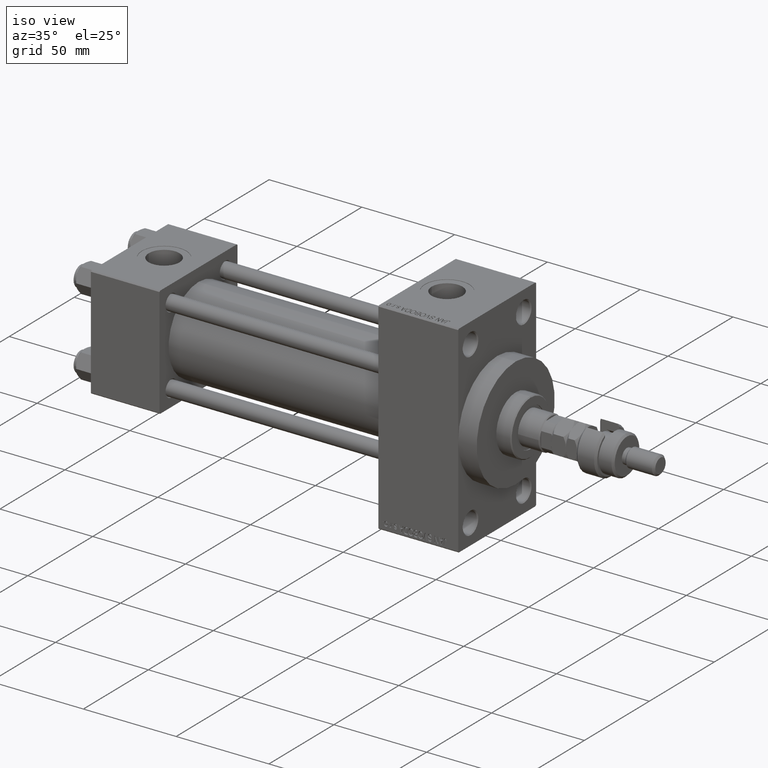
[diagram: clean part render]
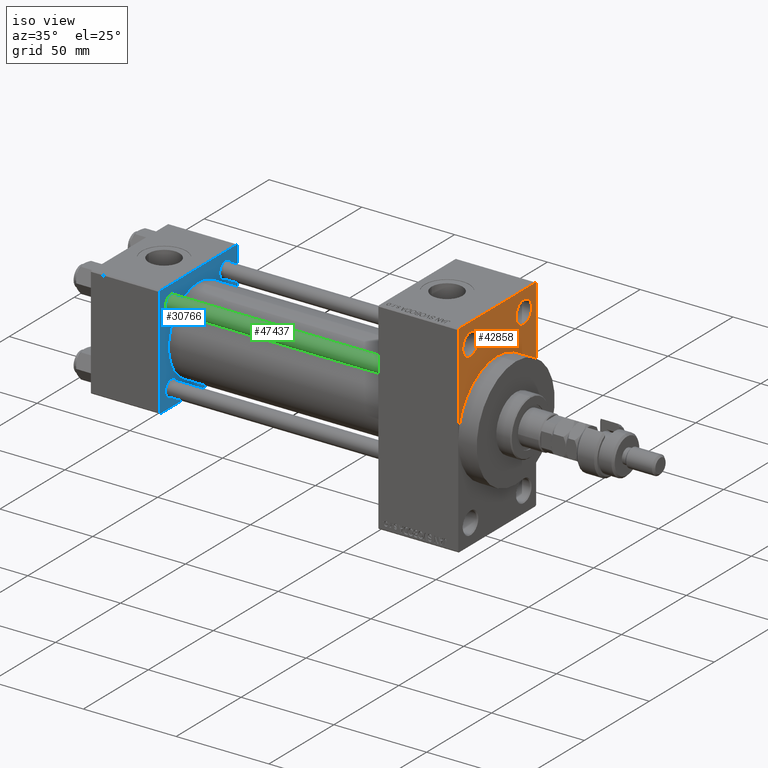
[diagram: same view with three faces highlighted in distinct colors, each labeled with its STEP entity id]
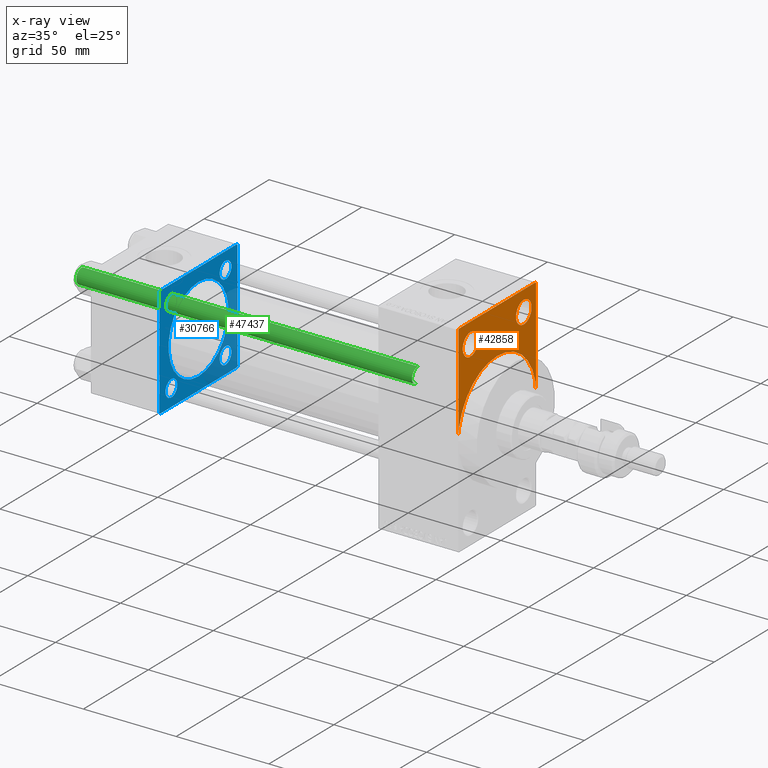
[diagram: x-ray of the same camera — body ghosted, the three highlighted faces saturated]
A machine part, iso view with three faces highlighted in distinct colors.
The next image is the same camera in x-ray (body ghosted, the three faces saturated) — at least one of them is partly hidden behind the body in this view.
Their STEP definitions:

[orange] entity #42858 — the highlighted planar face has unit normal (-1, 0, 0).
#1072 = AXIS2_PLACEMENT_3D ( 'NONE', #12002, #15787, #12250 ) ;
#1424 = CARTESIAN_POINT ( 'NONE',  ( 198.0000000000000000, 29.99999999999999645, 54.49999999999999289 ) ) ;
#1658 = FACE_OUTER_BOUND ( 'NONE', #45030, .T. ) ;
#2853 = ORIENTED_EDGE ( 'NONE', *, *, #37441, .T. ) ;
#3057 = EDGE_CURVE ( 'NONE', #17237, #40797, #6511, .T. ) ;
#5626 = CARTESIAN_POINT ( 'NONE',  ( 198.0000000000000000, -30.00000000000000000, 53.99999999999997158 ) ) ;
#5968 = DIRECTION ( 'NONE',  ( 0.000000000000000000, 0.000000000000000000, -1.000000000000000000 ) ) ;
#6167 = DIRECTION ( 'NONE',  ( 0.000000000000000000, -1.000000000000000000, 1.156482317317871478E-16 ) ) ;
#6372 = CARTESIAN_POINT ( 'NONE',  ( 198.0000000000000000, 29.49999999999999645, 54.49999999999999289 ) ) ;
#6511 = LINE ( 'NONE', #34095, #15672 ) ;
#6950 = CARTESIAN_POINT ( 'NONE',  ( 198.0000000000000000, 20.50000000000000000, 43.50000000000000000 ) ) ;
#7211 = DIRECTION ( 'NONE',  ( 0.000000000000000000, 0.000000000000000000, 1.000000000000000000 ) ) ;
#8376 = CARTESIAN_POINT ( 'NONE',  ( 198.0000000000000000, 30.00000000000000000, 0.000000000000000000 ) ) ;
#8513 = DIRECTION ( 'NONE',  ( -1.000000000000000000, 0.000000000000000000, -0.000000000000000000 ) ) ;
#8670 = CARTESIAN_POINT ( 'NONE',  ( 198.0000000000000000, -20.50000000000000000, 49.50000000000002842 ) ) ;
#8713 = CARTESIAN_POINT ( 'NONE',  ( 198.0000000000000000, -30.00000000000000000, 0.000000000000000000 ) ) ;
#8950 = CARTESIAN_POINT ( 'NONE',  ( 198.0000000000000000, -20.50000000000000000, 37.49999999999996447 ) ) ;
#10462 = ORIENTED_EDGE ( 'NONE', *, *, #28419, .T. ) ;
#12002 = CARTESIAN_POINT ( 'NONE',  ( 198.0000000000000000, 20.50000000000000000, 43.50000000000000000 ) ) ;
#12250 = DIRECTION ( 'NONE',  ( 0.000000000000000000, 0.000000000000000000, 1.000000000000000000 ) ) ;
#12605 = CIRCLE ( 'NONE', #48933, 30.00000000000000000 ) ;
#12651 = CARTESIAN_POINT ( 'NONE',  ( 198.0000000000000000, 0.000000000000000000, 0.000000000000000000 ) ) ;
#12822 = FACE_BOUND ( 'NONE', #24989, .T. ) ;
#12987 = ORIENTED_EDGE ( 'NONE', *, *, #27051, .F. ) ;
#13311 = PLANE ( 'NONE',  #42976 ) ;
#13784 = LINE ( 'NONE', #29201, #48077 ) ;
#13836 = ORIENTED_EDGE ( 'NONE', *, *, #19731, .F. ) ;
#13882 = DIRECTION ( 'NONE',  ( -1.000000000000000000, 0.000000000000000000, -0.000000000000000000 ) ) ;
#14464 = VERTEX_POINT ( 'NONE', #37453 ) ;
#14624 = DIRECTION ( 'NONE',  ( 0.000000000000000000, 0.000000000000000000, 1.000000000000000000 ) ) ;
#15351 = CARTESIAN_POINT ( 'NONE',  ( 198.0000000000000000, -29.49999999999997513, 54.50000000000000000 ) ) ;
#15536 = AXIS2_PLACEMENT_3D ( 'NONE', #29296, #13882, #14624 ) ;
#15672 = VECTOR ( 'NONE', #22440, 1000.000000000000114 ) ;
#15787 = DIRECTION ( 'NONE',  ( -1.000000000000000000, 0.000000000000000000, -0.000000000000000000 ) ) ;
#15983 = AXIS2_PLACEMENT_3D ( 'NONE', #42719, #27538, #31837 ) ;
#16032 = CIRCLE ( 'NONE', #15983, 6.000000000000032863 ) ;
#16333 = ORIENTED_EDGE ( 'NONE', *, *, #23307, .T. ) ;
#16342 = CARTESIAN_POINT ( 'NONE',  ( 198.0000000000000000, -30.00000000000000000, 54.50000000000000000 ) ) ;
#16443 = DIRECTION ( 'NONE',  ( 1.000000000000000000, 0.000000000000000000, 0.000000000000000000 ) ) ;
#17237 = VERTEX_POINT ( 'NONE', #19432 ) ;
#18036 = CIRCLE ( 'NONE', #1072, 6.000000000000032863 ) ;
#18299 = ORIENTED_EDGE ( 'NONE', *, *, #21166, .T. ) ;
#18587 = DIRECTION ( 'NONE',  ( 1.000000000000000000, 0.000000000000000000, 0.000000000000000000 ) ) ;
#19432 = CARTESIAN_POINT ( 'NONE',  ( 198.0000000000000000, 29.99999999999999645, 53.99999999999999289 ) ) ;
#19731 = EDGE_CURVE ( 'NONE', #48348, #24549, #34999, .T. ) ;
#20150 = CARTESIAN_POINT ( 'NONE',  ( 198.0000000000000000, 0.000000000000000000, 0.000000000000000000 ) ) ;
#21006 = VERTEX_POINT ( 'NONE', #15351 ) ;
#21166 = EDGE_CURVE ( 'NONE', #34034, #24549, #38611, .T. ) ;
#21402 = LINE ( 'NONE', #1424, #26232 ) ;
#22440 = DIRECTION ( 'NONE',  ( 0.000000000000000000, -0.7071067811865474617, 0.7071067811865474617 ) ) ;
#23307 = EDGE_CURVE ( 'NONE', #14464, #50040, #18036, .T. ) ;
#24365 = EDGE_CURVE ( 'NONE', #50040, #14464, #45506, .T. ) ;
#24549 = VERTEX_POINT ( 'NONE', #8713 ) ;
#24938 = DIRECTION ( 'NONE',  ( -0.000000000000000000, 0.000000000000000000, 1.000000000000000000 ) ) ;
#24989 = EDGE_LOOP ( 'NONE', ( #16333, #40251 ) ) ;
#25876 = DIRECTION ( 'NONE',  ( -0.000000000000000000, -0.7071067811865451302, -0.7071067811865500152 ) ) ;
#26052 = AXIS2_PLACEMENT_3D ( 'NONE', #49187, #18587, #46147 ) ;
#26232 = VECTOR ( 'NONE', #5968, 1000.000000000000000 ) ;
#26975 = AXIS2_PLACEMENT_3D ( 'NONE', #6950, #36402, #7211 ) ;
#27051 = EDGE_CURVE ( 'NONE', #17237, #42070, #21402, .T. ) ;
#27538 = DIRECTION ( 'NONE',  ( -1.000000000000000000, 0.000000000000000000, -0.000000000000000000 ) ) ;
#28419 = EDGE_CURVE ( 'NONE', #40797, #21006, #13784, .T. ) ;
#28737 = FACE_BOUND ( 'NONE', #42198, .T. ) ;
#29175 = ORIENTED_EDGE ( 'NONE', *, *, #47934, .T. ) ;
#29201 = CARTESIAN_POINT ( 'NONE',  ( 198.0000000000000000, 29.99999999999999645, 54.49999999999999289 ) ) ;
#29296 = CARTESIAN_POINT ( 'NONE',  ( 198.0000000000000000, -20.50000000000000000, 43.50000000000000000 ) ) ;
#29555 = EDGE_CURVE ( 'NONE', #42070, #48348, #12605, .T. ) ;
#30076 = VECTOR ( 'NONE', #39365, 1000.000000000000000 ) ;
#31837 = DIRECTION ( 'NONE',  ( 0.000000000000000000, 0.000000000000000000, 1.000000000000000000 ) ) ;
#31876 = DIRECTION ( 'NONE',  ( 0.000000000000000000, 0.000000000000000000, -1.000000000000000000 ) ) ;
#33221 = LINE ( 'NONE', #45094, #35535 ) ;
#34034 = VERTEX_POINT ( 'NONE', #5626 ) ;
#34095 = CARTESIAN_POINT ( 'NONE',  ( 198.0000000000000000, 29.49999999999999645, 54.49999999999999289 ) ) ;
#34999 = CIRCLE ( 'NONE', #26052, 30.00000000000000000 ) ;
#35535 = VECTOR ( 'NONE', #25876, 1000.000000000000114 ) ;
#35954 = VERTEX_POINT ( 'NONE', #8670 ) ;
#36341 = CARTESIAN_POINT ( 'NONE',  ( 198.0000000000000000, 0.000000000000000000, 30.00000000000000000 ) ) ;
#36402 = DIRECTION ( 'NONE',  ( -1.000000000000000000, 0.000000000000000000, -0.000000000000000000 ) ) ;
#36510 = ORIENTED_EDGE ( 'NONE', *, *, #3057, .T. ) ;
#37441 = EDGE_CURVE ( 'NONE', #35954, #46320, #16032, .T. ) ;
#37453 = CARTESIAN_POINT ( 'NONE',  ( 198.0000000000000000, 20.50000000000000000, 37.49999999999996447 ) ) ;
#38611 = LINE ( 'NONE', #16342, #30076 ) ;
#39365 = DIRECTION ( 'NONE',  ( 0.000000000000000000, 0.000000000000000000, -1.000000000000000000 ) ) ;
#39458 = ORIENTED_EDGE ( 'NONE', *, *, #43555, .T. ) ;
#39756 = CIRCLE ( 'NONE', #15536, 6.000000000000032863 ) ;
#40251 = ORIENTED_EDGE ( 'NONE', *, *, #24365, .T. ) ;
#40797 = VERTEX_POINT ( 'NONE', #6372 ) ;
#42070 = VERTEX_POINT ( 'NONE', #8376 ) ;
#42198 = EDGE_LOOP ( 'NONE', ( #39458, #2853 ) ) ;
#42719 = CARTESIAN_POINT ( 'NONE',  ( 198.0000000000000000, -20.50000000000000000, 43.50000000000000000 ) ) ;
#42858 = ADVANCED_FACE ( 'NONE', ( #28737, #12822, #1658 ), #13311, .F. ) ;
#42976 = AXIS2_PLACEMENT_3D ( 'NONE', #20150, #8513, #24938 ) ;
#43555 = EDGE_CURVE ( 'NONE', #46320, #35954, #39756, .T. ) ;
#45030 = EDGE_LOOP ( 'NONE', ( #10462, #29175, #18299, #13836, #48405, #12987, #36510 ) ) ;
#45094 = CARTESIAN_POINT ( 'NONE',  ( 198.0000000000000000, -30.00000000000000000, 53.99999999999997158 ) ) ;
#45506 = CIRCLE ( 'NONE', #26975, 6.000000000000032863 ) ;
#45541 = CARTESIAN_POINT ( 'NONE',  ( 198.0000000000000000, 20.50000000000000000, 49.50000000000002842 ) ) ;
#46147 = DIRECTION ( 'NONE',  ( 0.000000000000000000, 0.000000000000000000, -1.000000000000000000 ) ) ;
#46320 = VERTEX_POINT ( 'NONE', #8950 ) ;
#47934 = EDGE_CURVE ( 'NONE', #21006, #34034, #33221, .T. ) ;
#48077 = VECTOR ( 'NONE', #6167, 1000.000000000000000 ) ;
#48348 = VERTEX_POINT ( 'NONE', #36341 ) ;
#48405 = ORIENTED_EDGE ( 'NONE', *, *, #29555, .F. ) ;
#48933 = AXIS2_PLACEMENT_3D ( 'NONE', #12651, #16443, #31876 ) ;
#49187 = CARTESIAN_POINT ( 'NONE',  ( 198.0000000000000000, 0.000000000000000000, 0.000000000000000000 ) ) ;
#50040 = VERTEX_POINT ( 'NONE', #45541 ) ;

[blue] entity #30766 — the highlighted planar face has unit normal (-1, 0, 0).
#143 = CARTESIAN_POINT ( 'NONE',  ( 37.00000000000000000, 29.49999999999999289, 30.00000000000000000 ) ) ;
#154 = CIRCLE ( 'NONE', #1464, 4.500000000000003553 ) ;
#703 = LINE ( 'NONE', #20680, #26491 ) ;
#1197 = FACE_BOUND ( 'NONE', #3250, .T. ) ;
#1215 = CARTESIAN_POINT ( 'NONE',  ( 37.00000000000000000, -30.00000000000000000, 29.99999999999999289 ) ) ;
#1381 = CIRCLE ( 'NONE', #32917, 4.500000000000003553 ) ;
#1464 = AXIS2_PLACEMENT_3D ( 'NONE', #33101, #30046, #37636 ) ;
#1478 = EDGE_LOOP ( 'NONE', ( #17414, #23702, #37915, #6772, #34623, #5768, #39746, #36199 ) ) ;
#2059 = CARTESIAN_POINT ( 'NONE',  ( 37.00000000000000000, 20.84999999999999787, 16.34999999999999787 ) ) ;
#2660 = DIRECTION ( 'NONE',  ( 1.000000000000000000, -0.000000000000000000, 0.000000000000000000 ) ) ;
#2668 = CARTESIAN_POINT ( 'NONE',  ( 37.00000000000000000, -20.84999999999999076, 20.85000000000000497 ) ) ;
#2955 = CARTESIAN_POINT ( 'NONE',  ( 37.00000000000000000, 20.84999999999999787, -25.35000000000000497 ) ) ;
#3180 = VERTEX_POINT ( 'NONE', #41294 ) ;
#3250 = EDGE_LOOP ( 'NONE', ( #24816, #25206 ) ) ;
#3556 = CARTESIAN_POINT ( 'NONE',  ( 37.00000000000000000, 20.84999999999999787, 20.85000000000000142 ) ) ;
#4521 = EDGE_CURVE ( 'NONE', #13771, #33036, #48015, .T. ) ;
#4809 = ORIENTED_EDGE ( 'NONE', *, *, #13044, .T. ) ;
#4871 = AXIS2_PLACEMENT_3D ( 'NONE', #41428, #22199, #35098 ) ;
#5238 = FACE_BOUND ( 'NONE', #17978, .T. ) ;
#5768 = ORIENTED_EDGE ( 'NONE', *, *, #44045, .T. ) ;
#5825 = VECTOR ( 'NONE', #12551, 1000.000000000000114 ) ;
#5918 = CARTESIAN_POINT ( 'NONE',  ( 37.00000000000000711, 2.146024240737016609E-16, -23.00000000000000000 ) ) ;
#6086 = VERTEX_POINT ( 'NONE', #14963 ) ;
#6213 = DIRECTION ( 'NONE',  ( -1.000000000000000000, 0.000000000000000000, -0.000000000000000000 ) ) ;
#6217 = AXIS2_PLACEMENT_3D ( 'NONE', #8089, #11901, #47293 ) ;
#6772 = ORIENTED_EDGE ( 'NONE', *, *, #18765, .T. ) ;
#6951 = DIRECTION ( 'NONE',  ( 0.000000000000000000, 0.000000000000000000, 1.000000000000000000 ) ) ;
#6975 = CARTESIAN_POINT ( 'NONE',  ( 37.00000000000000000, 0.000000000000000000, 0.000000000000000000 ) ) ;
#6979 = AXIS2_PLACEMENT_3D ( 'NONE', #6975, #45433, #14838 ) ;
#7054 = CIRCLE ( 'NONE', #6217, 23.00000000000000000 ) ;
#7095 = VECTOR ( 'NONE', #38495, 1000.000000000000000 ) ;
#7237 = FACE_BOUND ( 'NONE', #43017, .T. ) ;
#7631 = CIRCLE ( 'NONE', #25406, 4.500000000000003553 ) ;
#7909 = CARTESIAN_POINT ( 'NONE',  ( 37.00000000000000000, 29.99999999999999289, -30.00000000000000000 ) ) ;
#8027 = CARTESIAN_POINT ( 'NONE',  ( 37.00000000000000000, -29.50000000000000000, -30.00000000000000711 ) ) ;
#8089 = CARTESIAN_POINT ( 'NONE',  ( 37.00000000000000711, -2.602085213965210642E-15, 0.000000000000000000 ) ) ;
#8354 = ORIENTED_EDGE ( 'NONE', *, *, #25789, .T. ) ;
#9556 = VECTOR ( 'NONE', #39328, 1000.000000000000000 ) ;
#10015 = VERTEX_POINT ( 'NONE', #38815 ) ;
#10249 = CARTESIAN_POINT ( 'NONE',  ( 37.00000000000000000, 20.84999999999999787, -20.85000000000000142 ) ) ;
#10715 = EDGE_CURVE ( 'NONE', #44959, #3180, #39588, .T. ) ;
#11277 = DIRECTION ( 'NONE',  ( -0.000000000000000000, -0.7071067811865474617, -0.7071067811865474617 ) ) ;
#11416 = CARTESIAN_POINT ( 'NONE',  ( 37.00000000000000000, -29.49999999999998579, 29.99999999999999289 ) ) ;
#11670 = DIRECTION ( 'NONE',  ( 0.000000000000000000, 0.000000000000000000, 1.000000000000000000 ) ) ;
#11679 = AXIS2_PLACEMENT_3D ( 'NONE', #25437, #2660, #6951 ) ;
#11835 = VERTEX_POINT ( 'NONE', #39601 ) ;
#11901 = DIRECTION ( 'NONE',  ( 1.000000000000000000, -0.000000000000000000, 0.000000000000000000 ) ) ;
#12551 = DIRECTION ( 'NONE',  ( 0.000000000000000000, -0.7071067811865474617, 0.7071067811865474617 ) ) ;
#12552 = EDGE_CURVE ( 'NONE', #11835, #27559, #39694, .T. ) ;
#12794 = CARTESIAN_POINT ( 'NONE',  ( 37.00000000000000000, -20.84999999999999076, 16.35000000000000142 ) ) ;
#12856 = DIRECTION ( 'NONE',  ( 0.000000000000000000, 0.000000000000000000, 1.000000000000000000 ) ) ;
#13044 = EDGE_CURVE ( 'NONE', #37810, #6086, #20743, .T. ) ;
#13771 = VERTEX_POINT ( 'NONE', #35901 ) ;
#14357 = EDGE_CURVE ( 'NONE', #30107, #10015, #1381, .T. ) ;
#14541 = EDGE_CURVE ( 'NONE', #27559, #17362, #39470, .T. ) ;
#14838 = DIRECTION ( 'NONE',  ( -0.000000000000000000, 0.000000000000000000, 1.000000000000000000 ) ) ;
#14960 = CARTESIAN_POINT ( 'NONE',  ( 37.00000000000000000, 20.84999999999999787, -20.85000000000000142 ) ) ;
#14963 = CARTESIAN_POINT ( 'NONE',  ( 37.00000000000000000, 20.84999999999999787, -16.34999999999999787 ) ) ;
#15897 = CARTESIAN_POINT ( 'NONE',  ( 37.00000000000000000, -20.84999999999999076, -20.85000000000000497 ) ) ;
#16065 = CARTESIAN_POINT ( 'NONE',  ( 37.00000000000000000, 29.99999999999999289, 30.00000000000000000 ) ) ;
#16109 = ORIENTED_EDGE ( 'NONE', *, *, #4521, .F. ) ;
#16779 = EDGE_CURVE ( 'NONE', #45109, #48957, #31491, .T. ) ;
#17347 = DIRECTION ( 'NONE',  ( -1.000000000000000000, 0.000000000000000000, -0.000000000000000000 ) ) ;
#17362 = VERTEX_POINT ( 'NONE', #8027 ) ;
#17414 = ORIENTED_EDGE ( 'NONE', *, *, #48753, .F. ) ;
#17789 = CARTESIAN_POINT ( 'NONE',  ( 37.00000000000000000, 29.49999999999997868, -30.00000000000000000 ) ) ;
#17978 = EDGE_LOOP ( 'NONE', ( #36232, #31101 ) ) ;
#18357 = DIRECTION ( 'NONE',  ( 0.000000000000000000, 0.000000000000000000, 1.000000000000000000 ) ) ;
#18765 = EDGE_CURVE ( 'NONE', #44959, #45109, #31774, .T. ) ;
#18991 = DIRECTION ( 'NONE',  ( 0.000000000000000000, 0.000000000000000000, 1.000000000000000000 ) ) ;
#19256 = ORIENTED_EDGE ( 'NONE', *, *, #43572, .T. ) ;
#20018 = CIRCLE ( 'NONE', #37793, 4.500000000000003553 ) ;
#20470 = CARTESIAN_POINT ( 'NONE',  ( 37.00000000000000000, -29.50000000000001066, -30.00000000000000711 ) ) ;
#20680 = CARTESIAN_POINT ( 'NONE',  ( 37.00000000000000000, 29.99999999999999289, -29.50000000000000000 ) ) ;
#20743 = CIRCLE ( 'NONE', #36882, 4.500000000000003553 ) ;
#22199 = DIRECTION ( 'NONE',  ( -1.000000000000000000, 0.000000000000000000, -0.000000000000000000 ) ) ;
#22412 = PLANE ( 'NONE',  #6979 ) ;
#23106 = CARTESIAN_POINT ( 'NONE',  ( 37.00000000000000000, 20.84999999999999787, 20.85000000000000142 ) ) ;
#23702 = ORIENTED_EDGE ( 'NONE', *, *, #37482, .T. ) ;
#23860 = DIRECTION ( 'NONE',  ( -1.000000000000000000, 0.000000000000000000, -0.000000000000000000 ) ) ;
#23886 = CARTESIAN_POINT ( 'NONE',  ( 37.00000000000000000, 29.99999999999999289, 30.00000000000000000 ) ) ;
#24097 = LINE ( 'NONE', #7909, #42836 ) ;
#24816 = ORIENTED_EDGE ( 'NONE', *, *, #49557, .T. ) ;
#25177 = DIRECTION ( 'NONE',  ( 0.000000000000000000, 0.000000000000000000, 1.000000000000000000 ) ) ;
#25206 = ORIENTED_EDGE ( 'NONE', *, *, #36496, .T. ) ;
#25406 = AXIS2_PLACEMENT_3D ( 'NONE', #14960, #27589, #11670 ) ;
#25437 = CARTESIAN_POINT ( 'NONE',  ( 37.00000000000000711, -2.602085213965210642E-15, 0.000000000000000000 ) ) ;
#25789 = EDGE_CURVE ( 'NONE', #6086, #37810, #7631, .T. ) ;
#26491 = VECTOR ( 'NONE', #32085, 999.9999999999998863 ) ;
#27167 = EDGE_CURVE ( 'NONE', #31073, #33715, #34328, .T. ) ;
#27559 = VERTEX_POINT ( 'NONE', #29192 ) ;
#27589 = DIRECTION ( 'NONE',  ( -1.000000000000000000, 0.000000000000000000, -0.000000000000000000 ) ) ;
#27955 = CARTESIAN_POINT ( 'NONE',  ( 37.00000000000000000, -20.84999999999999076, -16.35000000000000142 ) ) ;
#28049 = VECTOR ( 'NONE', #39331, 1000.000000000000000 ) ;
#29192 = CARTESIAN_POINT ( 'NONE',  ( 37.00000000000000000, -30.00000000000000000, -29.50000000000001776 ) ) ;
#29262 = FACE_BOUND ( 'NONE', #35436, .T. ) ;
#30046 = DIRECTION ( 'NONE',  ( -1.000000000000000000, 0.000000000000000000, -0.000000000000000000 ) ) ;
#30107 = VERTEX_POINT ( 'NONE', #2059 ) ;
#30246 = LINE ( 'NONE', #45924, #33755 ) ;
#30766 = ADVANCED_FACE ( 'NONE', ( #1197, #29262, #47508, #5238, #7237, #37858 ), #22412, .F. ) ;
#30879 = DIRECTION ( 'NONE',  ( 0.000000000000000000, 0.7071067811865474617, -0.7071067811865474617 ) ) ;
#31073 = VERTEX_POINT ( 'NONE', #48381 ) ;
#31101 = ORIENTED_EDGE ( 'NONE', *, *, #36990, .T. ) ;
#31115 = VERTEX_POINT ( 'NONE', #43400 ) ;
#31491 = LINE ( 'NONE', #23886, #9556 ) ;
#31691 = DIRECTION ( 'NONE',  ( 0.000000000000000000, -1.000000000000000000, -1.156482317317871725E-16 ) ) ;
#31774 = LINE ( 'NONE', #143, #5825 ) ;
#32085 = DIRECTION ( 'NONE',  ( -0.000000000000000000, 0.7071067811865574537, 0.7071067811865376918 ) ) ;
#32178 = EDGE_CURVE ( 'NONE', #33036, #13771, #7054, .T. ) ;
#32585 = CARTESIAN_POINT ( 'NONE',  ( 37.00000000000000000, 29.99999999999999289, 29.50000000000000000 ) ) ;
#32902 = VERTEX_POINT ( 'NONE', #27955 ) ;
#32917 = AXIS2_PLACEMENT_3D ( 'NONE', #3556, #34170, #18991 ) ;
#33036 = VERTEX_POINT ( 'NONE', #5918 ) ;
#33101 = CARTESIAN_POINT ( 'NONE',  ( 37.00000000000000000, -20.84999999999999076, 20.85000000000000497 ) ) ;
#33715 = VERTEX_POINT ( 'NONE', #12794 ) ;
#33755 = VECTOR ( 'NONE', #11277, 1000.000000000000114 ) ;
#34170 = DIRECTION ( 'NONE',  ( -1.000000000000000000, 0.000000000000000000, -0.000000000000000000 ) ) ;
#34328 = CIRCLE ( 'NONE', #44030, 4.500000000000003553 ) ;
#34549 = CIRCLE ( 'NONE', #49883, 4.500000000000003553 ) ;
#34623 = ORIENTED_EDGE ( 'NONE', *, *, #16779, .T. ) ;
#35098 = DIRECTION ( 'NONE',  ( 0.000000000000000000, 0.000000000000000000, 1.000000000000000000 ) ) ;
#35118 = DIRECTION ( 'NONE',  ( -1.000000000000000000, 0.000000000000000000, -0.000000000000000000 ) ) ;
#35436 = EDGE_LOOP ( 'NONE', ( #4809, #8354 ) ) ;
#35901 = CARTESIAN_POINT ( 'NONE',  ( 37.00000000000000711, -2.602085213965210642E-15, 23.00000000000000000 ) ) ;
#35965 = ORIENTED_EDGE ( 'NONE', *, *, #27167, .T. ) ;
#36199 = ORIENTED_EDGE ( 'NONE', *, *, #14541, .T. ) ;
#36232 = ORIENTED_EDGE ( 'NONE', *, *, #14357, .T. ) ;
#36496 = EDGE_CURVE ( 'NONE', #32902, #31115, #34549, .T. ) ;
#36641 = EDGE_LOOP ( 'NONE', ( #19256, #35965 ) ) ;
#36882 = AXIS2_PLACEMENT_3D ( 'NONE', #10249, #17347, #25177 ) ;
#36990 = EDGE_CURVE ( 'NONE', #10015, #30107, #20018, .T. ) ;
#37482 = EDGE_CURVE ( 'NONE', #38292, #3180, #703, .T. ) ;
#37618 = CARTESIAN_POINT ( 'NONE',  ( 37.00000000000000000, 29.49999999999999289, 30.00000000000000000 ) ) ;
#37636 = DIRECTION ( 'NONE',  ( 0.000000000000000000, 0.000000000000000000, 1.000000000000000000 ) ) ;
#37793 = AXIS2_PLACEMENT_3D ( 'NONE', #23106, #23860, #39559 ) ;
#37810 = VERTEX_POINT ( 'NONE', #2955 ) ;
#37858 = FACE_OUTER_BOUND ( 'NONE', #1478, .T. ) ;
#37915 = ORIENTED_EDGE ( 'NONE', *, *, #10715, .F. ) ;
#38292 = VERTEX_POINT ( 'NONE', #17789 ) ;
#38495 = DIRECTION ( 'NONE',  ( 0.000000000000000000, 0.000000000000000000, -1.000000000000000000 ) ) ;
#38815 = CARTESIAN_POINT ( 'NONE',  ( 37.00000000000000000, 20.84999999999999787, 25.35000000000000497 ) ) ;
#39328 = DIRECTION ( 'NONE',  ( 0.000000000000000000, -1.000000000000000000, -1.156482317317871725E-16 ) ) ;
#39331 = DIRECTION ( 'NONE',  ( 0.000000000000000000, 0.000000000000000000, -1.000000000000000000 ) ) ;
#39470 = LINE ( 'NONE', #20470, #40968 ) ;
#39559 = DIRECTION ( 'NONE',  ( 0.000000000000000000, 0.000000000000000000, 1.000000000000000000 ) ) ;
#39588 = LINE ( 'NONE', #16065, #28049 ) ;
#39601 = CARTESIAN_POINT ( 'NONE',  ( 37.00000000000000000, -30.00000000000000000, 29.49999999999999289 ) ) ;
#39694 = LINE ( 'NONE', #1215, #7095 ) ;
#39746 = ORIENTED_EDGE ( 'NONE', *, *, #12552, .T. ) ;
#40968 = VECTOR ( 'NONE', #30879, 1000.000000000000114 ) ;
#41294 = CARTESIAN_POINT ( 'NONE',  ( 37.00000000000000000, 29.99999999999999289, -29.50000000000000000 ) ) ;
#41428 = CARTESIAN_POINT ( 'NONE',  ( 37.00000000000000000, -20.84999999999999076, -20.85000000000000497 ) ) ;
#42836 = VECTOR ( 'NONE', #31691, 1000.000000000000000 ) ;
#42859 = CIRCLE ( 'NONE', #4871, 4.500000000000003553 ) ;
#43017 = EDGE_LOOP ( 'NONE', ( #16109, #48176 ) ) ;
#43400 = CARTESIAN_POINT ( 'NONE',  ( 37.00000000000000000, -20.84999999999999076, -25.35000000000000853 ) ) ;
#43572 = EDGE_CURVE ( 'NONE', #33715, #31073, #154, .T. ) ;
#44030 = AXIS2_PLACEMENT_3D ( 'NONE', #2668, #6213, #18357 ) ;
#44045 = EDGE_CURVE ( 'NONE', #48957, #11835, #30246, .T. ) ;
#44959 = VERTEX_POINT ( 'NONE', #32585 ) ;
#45109 = VERTEX_POINT ( 'NONE', #37618 ) ;
#45433 = DIRECTION ( 'NONE',  ( -1.000000000000000000, 0.000000000000000000, -0.000000000000000000 ) ) ;
#45924 = CARTESIAN_POINT ( 'NONE',  ( 37.00000000000000000, -30.00000000000000000, 29.49999999999999289 ) ) ;
#47293 = DIRECTION ( 'NONE',  ( 0.000000000000000000, 0.000000000000000000, 1.000000000000000000 ) ) ;
#47508 = FACE_BOUND ( 'NONE', #36641, .T. ) ;
#48015 = CIRCLE ( 'NONE', #11679, 23.00000000000000000 ) ;
#48176 = ORIENTED_EDGE ( 'NONE', *, *, #32178, .F. ) ;
#48381 = CARTESIAN_POINT ( 'NONE',  ( 37.00000000000000000, -20.84999999999999076, 25.35000000000000853 ) ) ;
#48753 = EDGE_CURVE ( 'NONE', #38292, #17362, #24097, .T. ) ;
#48957 = VERTEX_POINT ( 'NONE', #11416 ) ;
#49557 = EDGE_CURVE ( 'NONE', #31115, #32902, #42859, .T. ) ;
#49883 = AXIS2_PLACEMENT_3D ( 'NONE', #15897, #35118, #12856 ) ;

[green] entity #47437 — the highlighted cylindrical surface (edge-blend (fillet) strip) has radius 4 mm, axis along (1, 0, 0).
#720 = LINE ( 'NONE', #12626, #29706 ) ;
#918 = VERTEX_POINT ( 'NONE', #29389 ) ;
#1912 = CARTESIAN_POINT ( 'NONE',  ( 0.000000000000000000, 0.000000000000000000, 182.0000000000000000 ) ) ;
#6198 = DIRECTION ( 'NONE',  ( -0.000000000000000000, -0.000000000000000000, -1.000000000000000000 ) ) ;
#6410 = AXIS2_PLACEMENT_3D ( 'NONE', #1912, #6198, #32787 ) ;
#7648 = DIRECTION ( 'NONE',  ( 1.000000000000000000, 0.000000000000000000, 0.000000000000000000 ) ) ;
#11482 = VERTEX_POINT ( 'NONE', #12839 ) ;
#12342 = CARTESIAN_POINT ( 'NONE',  ( -4.000000000000000000, 0.000000000000000000, 182.0000000000000000 ) ) ;
#12505 = EDGE_CURVE ( 'NONE', #918, #41631, #720, .T. ) ;
#12626 = CARTESIAN_POINT ( 'NONE',  ( 4.000000000000000000, 4.898587196589412829E-16, 182.0000000000000000 ) ) ;
#12839 = CARTESIAN_POINT ( 'NONE',  ( -4.000000000000000000, 0.000000000000000000, 181.5000000000000284 ) ) ;
#14093 = EDGE_CURVE ( 'NONE', #41631, #41864, #42600, .T. ) ;
#16376 = DIRECTION ( 'NONE',  ( -0.000000000000000000, -0.000000000000000000, -1.000000000000000000 ) ) ;
#17399 = EDGE_CURVE ( 'NONE', #11482, #41864, #31561, .T. ) ;
#17914 = ORIENTED_EDGE ( 'NONE', *, *, #14093, .T. ) ;
#19646 = CARTESIAN_POINT ( 'NONE',  ( 4.000000000000000000, 4.898587196589412829E-16, 0.4999999999999726885 ) ) ;
#20218 = DIRECTION ( 'NONE',  ( 1.000000000000000000, 0.000000000000000000, 0.000000000000000000 ) ) ;
#20464 = CARTESIAN_POINT ( 'NONE',  ( 0.000000000000000000, 0.000000000000000000, 181.5000000000000284 ) ) ;
#24252 = DIRECTION ( 'NONE',  ( -0.000000000000000000, -0.000000000000000000, -1.000000000000000000 ) ) ;
#24316 = EDGE_CURVE ( 'NONE', #11482, #918, #47149, .T. ) ;
#29389 = CARTESIAN_POINT ( 'NONE',  ( 4.000000000000000000, 4.898587196589412829E-16, 181.5000000000000284 ) ) ;
#29612 = ORIENTED_EDGE ( 'NONE', *, *, #24316, .T. ) ;
#29706 = VECTOR ( 'NONE', #24252, 1000.000000000000000 ) ;
#30435 = CARTESIAN_POINT ( 'NONE',  ( 0.000000000000000000, 0.000000000000000000, 0.4999999999999726885 ) ) ;
#30974 = AXIS2_PLACEMENT_3D ( 'NONE', #20464, #43499, #20218 ) ;
#31561 = LINE ( 'NONE', #12342, #32341 ) ;
#32341 = VECTOR ( 'NONE', #16376, 1000.000000000000000 ) ;
#32787 = DIRECTION ( 'NONE',  ( -1.000000000000000000, 0.000000000000000000, 0.000000000000000000 ) ) ;
#37073 = FACE_OUTER_BOUND ( 'NONE', #45560, .T. ) ;
#39402 = ORIENTED_EDGE ( 'NONE', *, *, #17399, .F. ) ;
#40616 = CYLINDRICAL_SURFACE ( 'NONE', #6410, 4.000000000000000000 ) ;
#41631 = VERTEX_POINT ( 'NONE', #19646 ) ;
#41864 = VERTEX_POINT ( 'NONE', #45331 ) ;
#41954 = ORIENTED_EDGE ( 'NONE', *, *, #12505, .T. ) ;
#42600 = CIRCLE ( 'NONE', #43404, 4.000000000000000000 ) ;
#43404 = AXIS2_PLACEMENT_3D ( 'NONE', #30435, #45597, #7648 ) ;
#43499 = DIRECTION ( 'NONE',  ( 0.000000000000000000, 0.000000000000000000, -1.000000000000000000 ) ) ;
#45331 = CARTESIAN_POINT ( 'NONE',  ( -4.000000000000000000, 0.000000000000000000, 0.4999999999999726885 ) ) ;
#45560 = EDGE_LOOP ( 'NONE', ( #29612, #41954, #17914, #39402 ) ) ;
#45597 = DIRECTION ( 'NONE',  ( -0.000000000000000000, -0.000000000000000000, 1.000000000000000000 ) ) ;
#47149 = CIRCLE ( 'NONE', #30974, 4.000000000000000000 ) ;
#47437 = ADVANCED_FACE ( 'NONE', ( #37073 ), #40616, .T. ) ;